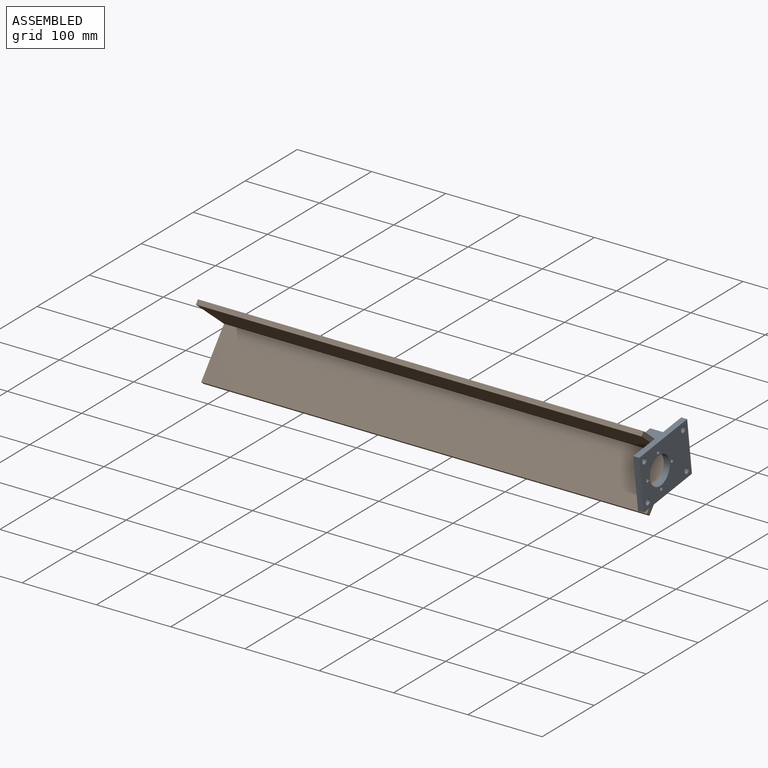
[diagram: assembled view]
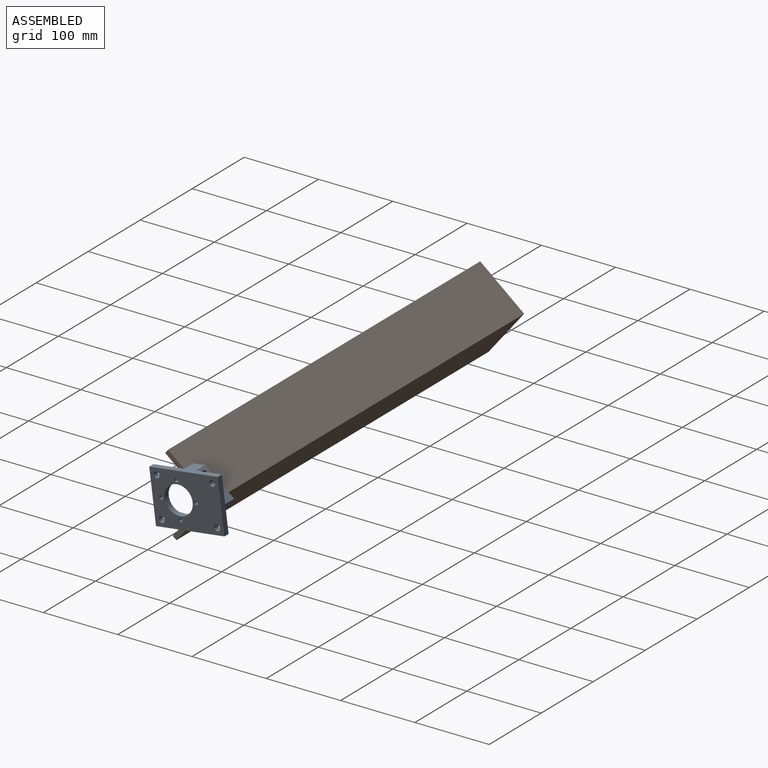
[diagram: assembled view, second angle]
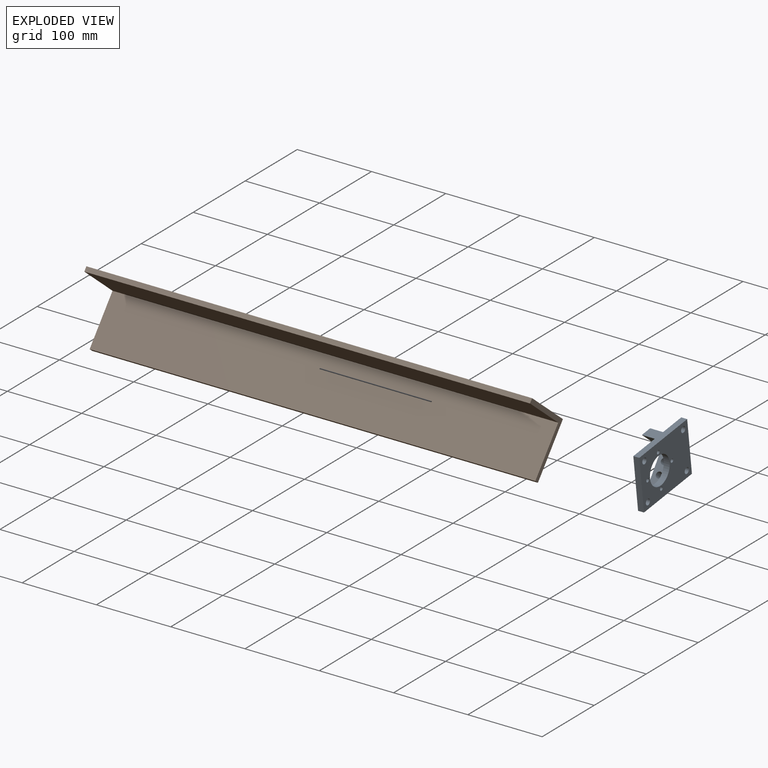
[diagram: exploded view]
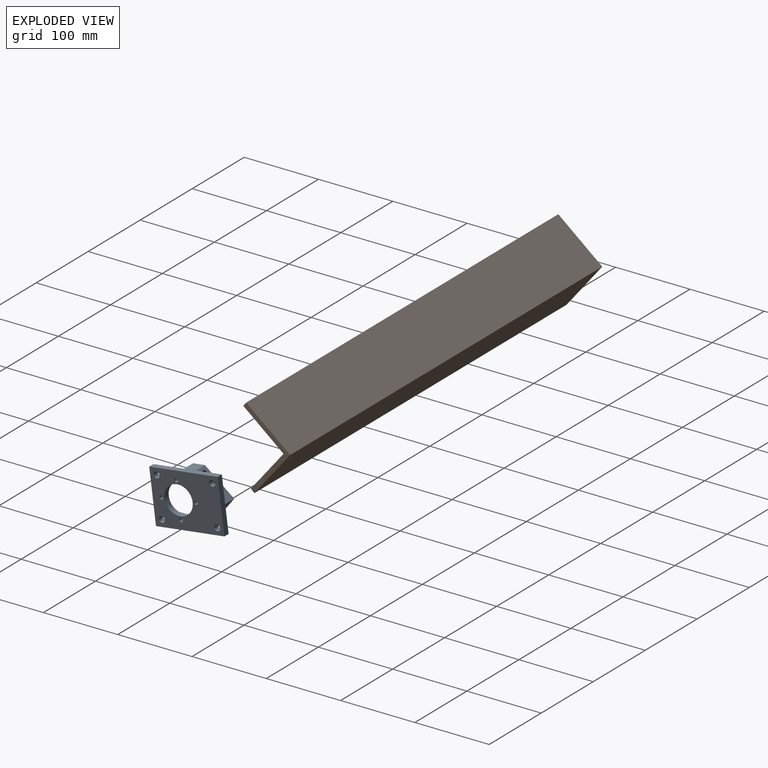
[diagram: exploded view, second angle]
ASSEMBLY  parts=2 mates=2
PART A: 26 faces, bbox 92.9x70.6x25.4 mm
  f0: plane 92.89x25.4mm, normal (0,-1,0), area 1021.5mm2, adj f1,f10,f11,f13,f14,f19,f20,f21
  f1: plane 70.54x8mm, normal (1,0,0), area 564.3mm2, adj f0,f2,f10,f11
  f2: plane 92.89x25.4mm, normal (0,1,0), area 1021.5mm2, adj f1,f10,f11,f12,f14,f16,f17,f21
  f3: cylinder r=2.5mm len=8mm, axis (0,0,-1), area 125.7mm2, adj f10,f11
  f4: cylinder r=2.5mm len=8mm, axis (0,0,-1), area 125.7mm2, adj f10,f11
  f5: cylinder r=2.5mm len=8mm, axis (0,0,-1), area 125.7mm2, adj f10,f11
  f6: cylinder r=19.05mm len=38.1mm, axis (0,0,-1), area 957.6mm2, adj f10,f11
  f7: cylinder r=2.5mm len=8mm, axis (0,0,-1), area 125.7mm2, adj f10,f11
  f8: cylinder r=4mm len=8mm, axis (0,0,-1), area 201.1mm2, adj f10,f11
  f9: cylinder r=4mm len=8mm, axis (0,0,-1), area 201.1mm2, adj f10,f11
  f10: plane 75.11x70.54mm, normal (0,0,1), area 2798.2mm2, adj f0,f1,f2,f3,f4,f5,f6,f7
  f11: plane 92.89x70.54mm, normal (0,0,-1), area 5133.1mm2, adj f0,f1,f2,f3,f4,f5,f6,f7
  f12: plane 35.31x33.54mm, normal (0.73,-0.69,0), area 745.8mm2, adj f2,f10,f13,f21,f22,f23
  f13: plane 35.27x33.49mm, normal (0.73,0.69,0), area 745.8mm2, adj f0,f10,f12,f21,f24,f25
  f14: plane 70.54x8mm, normal (-1,0,0), area 564.3mm2, adj f0,f2,f11,f16,f19
  f15: cylinder r=4mm len=8mm, axis (0,0,-1), area 201.1mm2, adj f11,f16
  f16: plane 35.27x35.27mm, normal (0,0,1), area 571.8mm2, adj f2,f14,f15,f17
  f17: plane 35.27x35.27mm, normal (-0.71,0.71,0), area 767.4mm2, adj f2,f16,f20,f21,f22,f23
  f18: cylinder r=4mm len=8mm, axis (0,0,-1), area 201.1mm2, adj f11,f19
  f19: plane 35.27x35.27mm, normal (0,0,1), area 571.8mm2, adj f0,f14,f18,f20
  f20: plane 35.27x35.27mm, normal (-0.71,-0.71,0), area 767.4mm2, adj f0,f17,f19,f21,f24,f25
  f21: plane 70.54x51.27mm, normal (0,0,1), area 1191.4mm2, adj f0,f2,f12,f13,f17,f20
  f22: cylinder r=4mm len=14.08mm, axis (-0.71,0.71,0), area 296.9mm2, adj f12,f17
  f23: cylinder r=4mm len=14.38mm, axis (-0.71,0.71,0), area 307.5mm2, adj f12,f17
  f24: cylinder r=4mm len=14.08mm, axis (-0.71,-0.71,0), area 296.9mm2, adj f13,f20
  f25: cylinder r=4mm len=14.38mm, axis (-0.71,-0.71,0), area 307.3mm2, adj f13,f20
PART B: 8 faces, bbox 600x58.4x107.8 mm
  f0: plane 600x49.39mm, normal (0,-0.71,0.71), area 41910mm2, adj f1,f5,f6,f7
  f1: plane 600x4.49mm, normal (0,-0.71,-0.71), area 3810mm2, adj f0,f2,f6,f7
  f2: plane 600x53.88mm, normal (0,0.71,-0.71), area 45720mm2, adj f1,f3,f6,f7
  f3: plane 600x53.88mm, normal (0,0.71,0.71), area 45720mm2, adj f2,f4,f6,f7
  f4: plane 600x4.49mm, normal (0,-0.71,0.71), area 3810mm2, adj f3,f5,f6,f7
  f5: plane 600x49.39mm, normal (0,-0.71,-0.71), area 41910mm2, adj f0,f4,f6,f7
  f6: plane 107.76x58.37mm, normal (1,0,0), area 927.4mm2, adj f0,f1,f2,f3,f4,f5
  f7: plane 107.76x58.37mm, normal (-1,0,0), area 927.4mm2, adj f0,f1,f2,f3,f4,f5
PLACE A rot(axis=(0.6,-0.53,-0.6),124.4deg) t=(-314.14,132.04,-84.36)mm
PLACE B rot(axis=(1,0,0),5.9deg) t=(-622.14,171.5,-79.18)mm
MATE planar B.f6 <-> A.f8  axis (1,0,0) through (-322.14,135.45,-58.1)mm
MATE planar A.f12 <-> B.f3  axis (0,-0.63,-0.78) through (-330.84,152.33,-63.62)mm
